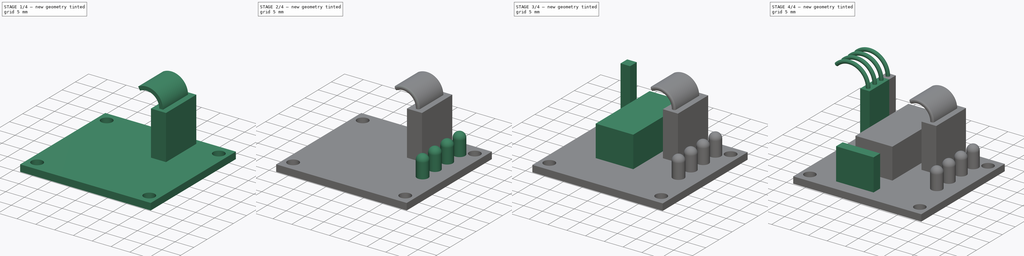
[diagram: build sequence overview — one tinted view per stage of 4, left to right]
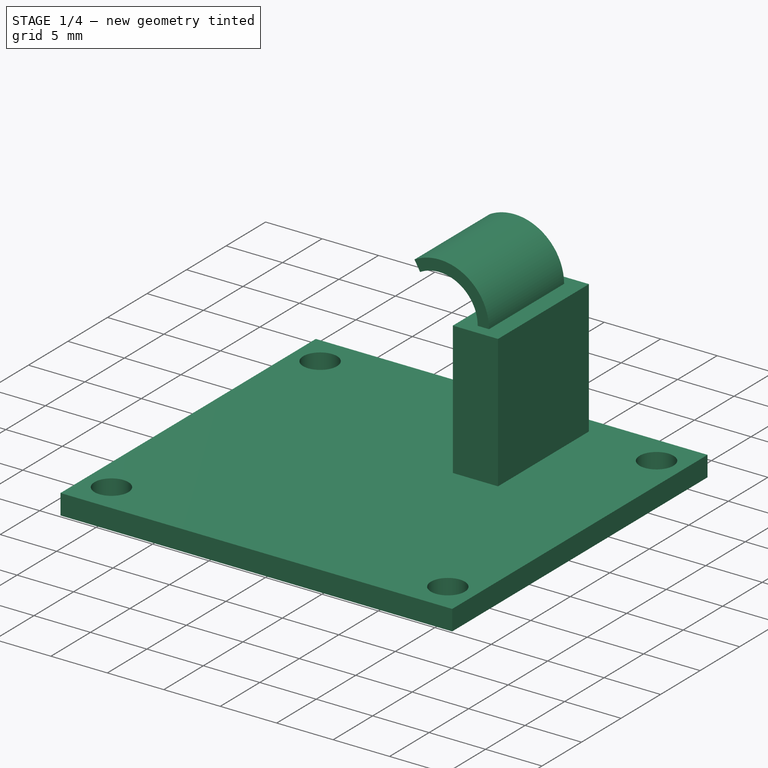
[diagram: stage 1 of 4 — iso view after this stage's code; geometry added in this stage tinted green]
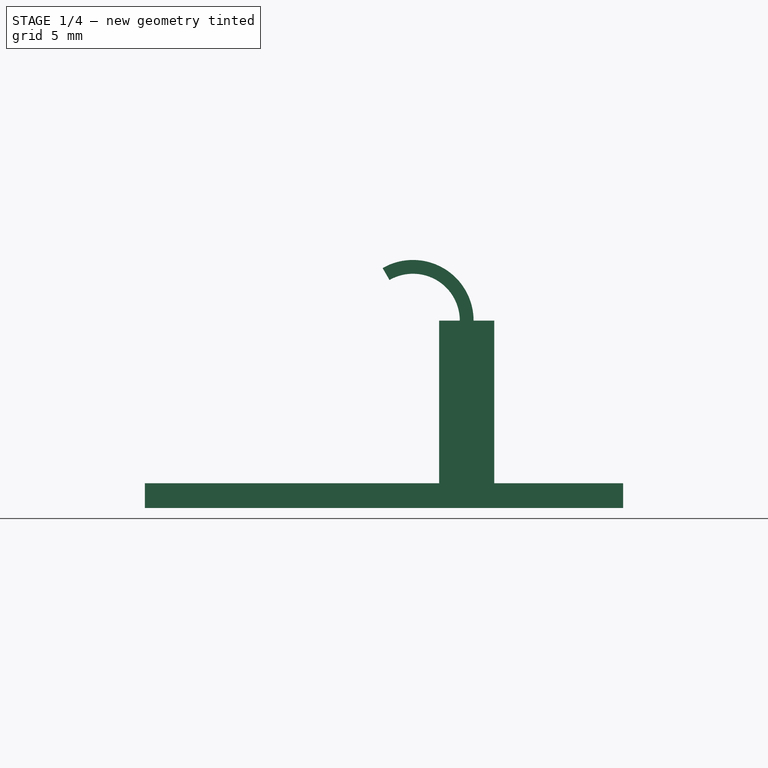
[diagram: stage 1 of 4 — front view after this stage's code; geometry added in this stage tinted green]
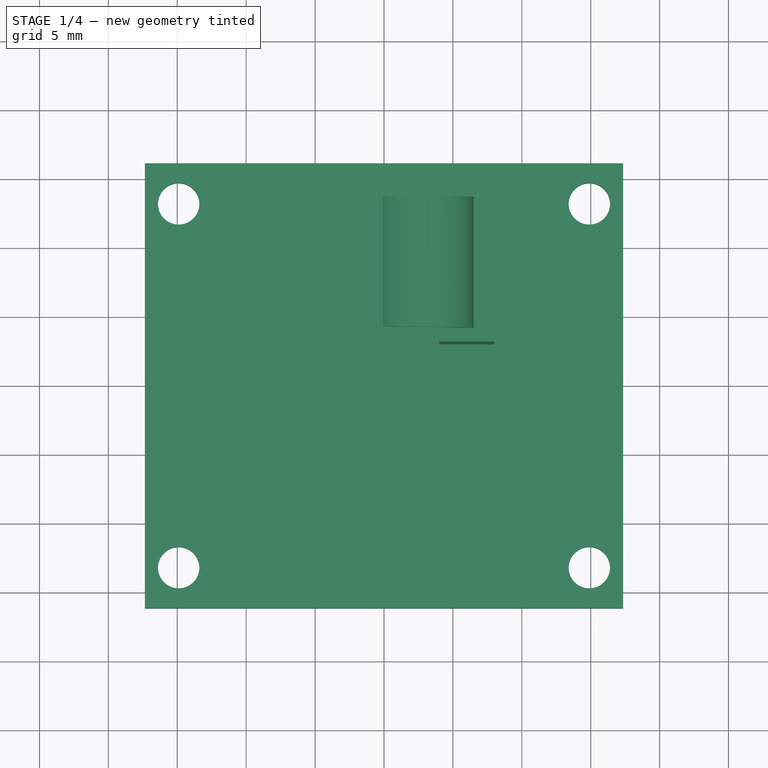
[diagram: stage 1 of 4 — top view after this stage's code; geometry added in this stage tinted green]
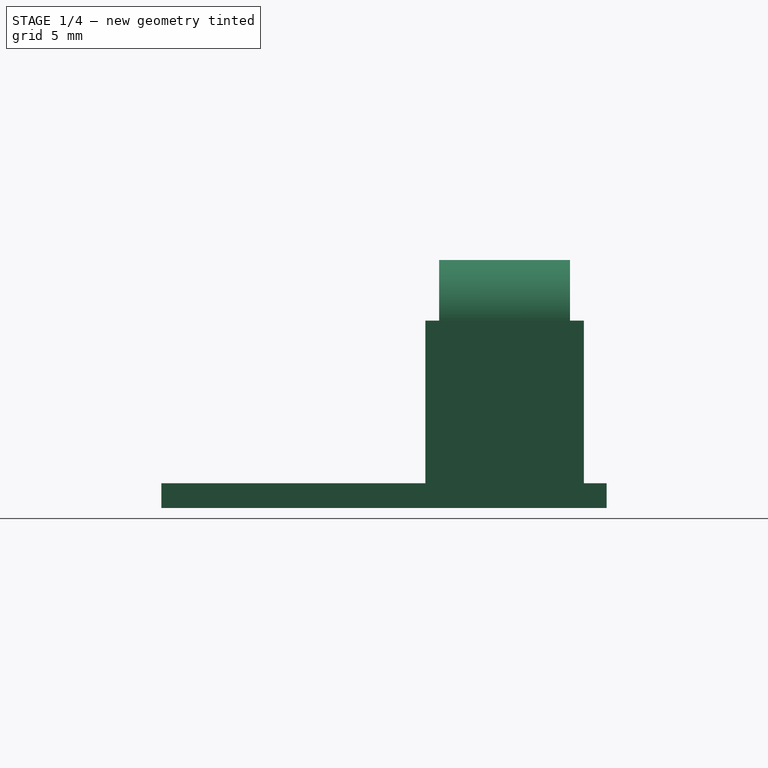
[diagram: stage 1 of 4 — right view after this stage's code; geometry added in this stage tinted green]
FCSTD DOCUMENT  (FreeCAD 0.18R15536 (Git))
Label: ULN2003 stepper driver board
License: All rights reserved
LicenseURL: http://en.wikipedia.org/wiki/All_rights_reserved
objects: Sketcher::SketchObject×9, PartDesign::Pad×6, PartDesign::LinearPattern×2, PartDesign::Fillet×1, PartDesign::Revolution×1, PartDesign::AdditivePipe×1, PartDesign::Body×1
note: 29 computed .brp shape members not serialized (recipe doc carries the construction recipe); baked Part::Feature solids carry a one-line shape summary decoded from their .brp

FEATURE [Sketcher::SketchObject] Sketch
  MapMode = 5
  Support = -> [XY_Plane]
  sketch-geometry (12):
    g0: LineSegment StartX=-17.35 StartY=16.15 StartZ=0 EndX=17.35 EndY=16.15 EndZ=0
    g1: LineSegment StartX=17.35 StartY=16.15 StartZ=0 EndX=17.35 EndY=-16.15 EndZ=0
    g2: LineSegment StartX=17.35 StartY=-16.15 StartZ=0 EndX=-17.35 EndY=-16.15 EndZ=0
    g3: LineSegment StartX=-17.35 StartY=-16.15 StartZ=0 EndX=-17.35 EndY=16.15 EndZ=0
    g4: LineSegment [constr] StartX=-14.9 StartY=13.2 StartZ=0 EndX=14.9 EndY=13.2 EndZ=0
    g5: LineSegment [constr] StartX=14.9 StartY=13.2 StartZ=0 EndX=14.9 EndY=-13.2 EndZ=0
    g6: LineSegment [constr] StartX=14.9 StartY=-13.2 StartZ=0 EndX=-14.9 EndY=-13.2 EndZ=0
    g7: LineSegment [constr] StartX=-14.9 StartY=-13.2 StartZ=0 EndX=-14.9 EndY=13.2 EndZ=0
    g8: Circle CenterX=14.9 CenterY=13.2 CenterZ=0 NormalX=0 NormalY=0 NormalZ=1 AngleXU=0 Radius=1.5
    g9: Circle CenterX=-14.9 CenterY=13.2 CenterZ=0 NormalX=0 NormalY=0 NormalZ=1 AngleXU=0 Radius=1.5
    g10: Circle CenterX=-14.9 CenterY=-13.2 CenterZ=0 NormalX=0 NormalY=0 NormalZ=1 AngleXU=0 Radius=1.5
    g11: Circle CenterX=14.9 CenterY=-13.2 CenterZ=0 NormalX=0 NormalY=0 NormalZ=1 AngleXU=0 Radius=1.5
  constraints (28):
    c: Coincident(g0,g1)
    c: Coincident(g1,g2)
    c: Coincident(g2,g3)
    c: Coincident(g3,g0)
    c: Horizontal(g2)
    c: Vertical(g3)
    c: DistanceX(g0,g0) = 34.7
    c: Symmetric(g0,g0,g-2)
    c: Symmetric(g1,g0,g-1)
    c: DistanceY(g1,g1) = 32.3
    c: Coincident(g4,g5)
    c: Coincident(g5,g6)
    c: Coincident(g6,g7)
    c: Coincident(g7,g4)
    c: Horizontal(g6)
    c: Vertical(g7)
    c: Symmetric(g4,g4,g-2)
    c: Symmetric(g5,g4,g-1)
    c: DistanceX(g4,g4) = 29.8
    c: DistanceY(g5,g5) = 26.4
    c: Coincident(g8,g4)
    c: Radius(g8) = 1.5
    c: Coincident(g9,g4)
    c: Coincident(g10,g6)
    c: Coincident(g11,g5)
    c: Equal(g11,g10)
    c: Equal(g10,g9)
    c: Equal(g9,g8)
FEATURE [PartDesign::Pad] Pad
  Length = 1.8
  Length2 = 100
  Profile = -> Sketch
  Type = 0
FEATURE [Sketcher::SketchObject] Sketch001
  MapMode = 5
  Placement = pos=(0,0,1.8) rot=(0,0,1;0rad)
  Support = -> [Pad]
  sketch-geometry (4):
    g0: LineSegment StartX=4 StartY=14.5 StartZ=0 EndX=8 EndY=14.5 EndZ=0
    g1: LineSegment StartX=8 StartY=14.5 StartZ=0 EndX=8 EndY=3 EndZ=0
    g2: LineSegment StartX=8 StartY=3 StartZ=0 EndX=4 EndY=3 EndZ=0
    g3: LineSegment StartX=4 StartY=3 StartZ=0 EndX=4 EndY=14.5 EndZ=0
  constraints (12):
    c: Coincident(g0,g1)
    c: Coincident(g1,g2)
    c: Coincident(g2,g3)
    c: Coincident(g3,g0)
    c: Horizontal(g0)
    c: Horizontal(g2)
    c: Vertical(g1)
    c: Vertical(g3)
    c: DistanceX(g2) = 4
    c: DistanceY(g2) = 3
    c: DistanceY(g1,g1) = 11.5
    c: DistanceX(g0,g0) = 4
FEATURE [PartDesign::Pad] Pad001
  BaseFeature = -> Pad
  Length = 11.8
  Length2 = 100
  Profile = -> Sketch001
  Type = 0
FEATURE [Sketcher::SketchObject] Sketch002
  AttachmentOffset = pos=(0,0,-1) rot=(0,0,1;0rad)
  ExternalGeometry = -> [Pad001]
  MapMode = 5
  Placement = pos=(0,4,-2e-16) rot=(1,0,0;1.5708rad)
  Support = -> [Pad001]
  sketch-geometry (6):
    g0: ArcOfCircle CenterX=2.1 CenterY=13.6 CenterZ=0 NormalX=0 NormalY=0 NormalZ=1 AngleXU=0 Radius=3.4 StartAngle=1e-16 EndAngle=2.0944
    g1: ArcOfCircle CenterX=2.1 CenterY=13.6 CenterZ=0 NormalX=0 NormalY=0 NormalZ=1 AngleXU=0 Radius=4.4 StartAngle=0 EndAngle=2.0944
    g2: LineSegment StartX=-0.1 StartY=17.4105 StartZ=0 EndX=0.4 EndY=16.5445 EndZ=0
    g3: LineSegment [constr] StartX=2.1 StartY=18 StartZ=0 EndX=2.1 EndY=13.6 EndZ=0
    g4: LineSegment [constr] StartX=6 StartY=18 StartZ=0 EndX=6 EndY=13.6 EndZ=0
    g5: LineSegment StartX=5.5 StartY=13.6 StartZ=0 EndX=6.5 EndY=13.6 EndZ=0
  constraints (18):
    c: PointOnObject(g0,g-3)
    c: Coincident(g1,g0)
    c: Coincident(g2,g1)
    c: Coincident(g2,g0)
    c: PointOnObject(g0,g2)
    c: PointOnObject(g0,g-3)
    c: PointOnObject(g3,g1)
    c: Coincident(g3,g0)
    c: DistanceY(g3) = 18
    c: Distance(g2) = 1
    c: PointOnObject(g4,g-3)
    c: Symmetric(g-3,g-3,g4)
    c: Symmetric(g1,g0,g4)
    c: Vertical(g3)
    c: Equal(g4,g3)
    c: Angle(g3,g2) = 0.523599
    c: Coincident(g5,g0)
    c: Coincident(g5,g1)
FEATURE [PartDesign::Pad] Pad002
  BaseFeature = -> Pad001
  Length = 9.5
  Length2 = 100
  Profile = -> Sketch002
  Reversed = true
  Type = 0
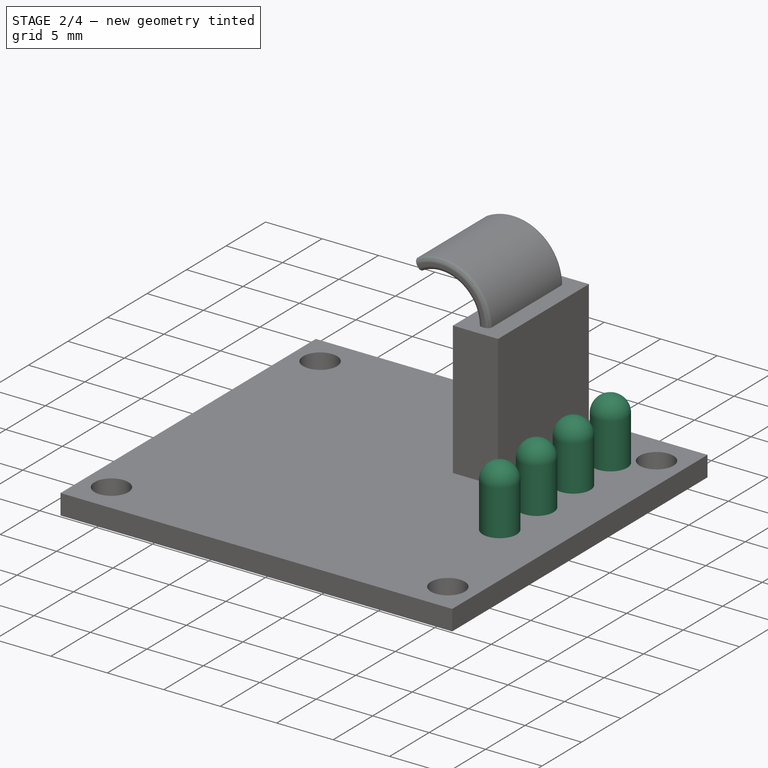
[diagram: stage 2 of 4 — iso view after this stage's code; geometry added in this stage tinted green]
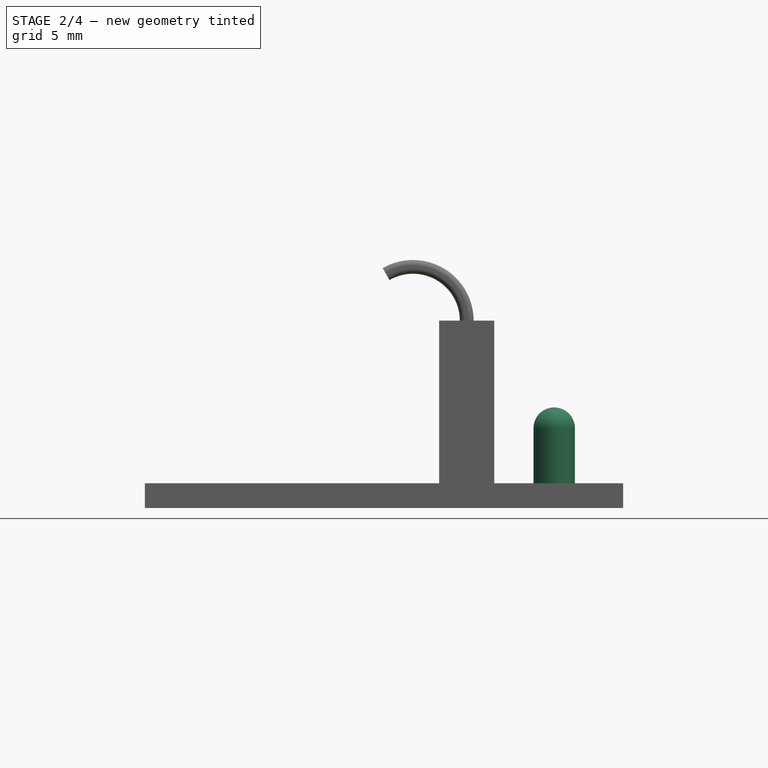
[diagram: stage 2 of 4 — front view after this stage's code; geometry added in this stage tinted green]
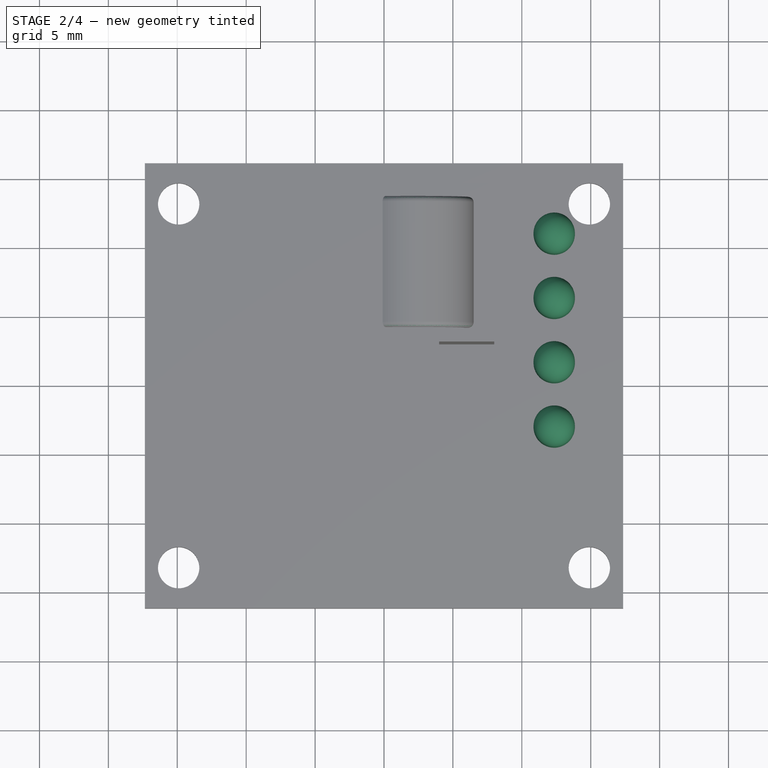
[diagram: stage 2 of 4 — top view after this stage's code; geometry added in this stage tinted green]
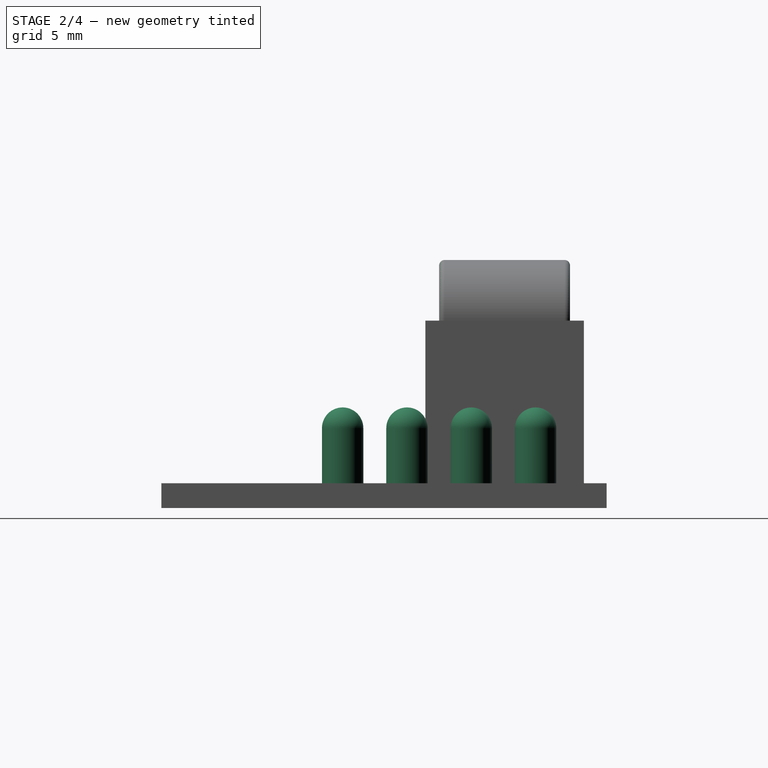
[diagram: stage 2 of 4 — right view after this stage's code; geometry added in this stage tinted green]
FEATURE [PartDesign::Fillet] Fillet
  Base = -> Pad002 [Edge41,Edge46,Edge42,Edge45]
  BaseFeature = -> Pad002
  Radius = 0.4
FEATURE [Sketcher::SketchObject] Sketch003
  AttachmentOffset = pos=(0,0,3) rot=(0,0,1;0rad)
  ExternalGeometry = -> [Fillet]
  MapMode = 5
  Placement = pos=(0,-3,-7e-16) rot=(1,0,0;1.5708rad)
  Support = -> [XZ_Plane]
  sketch-geometry (5):
    g0: ArcOfCircle CenterX=12.35 CenterY=5.8 CenterZ=0 NormalX=0 NormalY=0 NormalZ=1 AngleXU=0 Radius=1.5 StartAngle=3e-16 EndAngle=1.5708
    g1: LineSegment StartX=13.85 StartY=5.8 StartZ=0 EndX=13.85 EndY=1.8 EndZ=0
    g2: LineSegment StartX=13.85 StartY=1.8 StartZ=0 EndX=12.35 EndY=1.8 EndZ=0
    g3: LineSegment StartX=12.35 StartY=1.8 StartZ=0 EndX=12.35 EndY=7.3 EndZ=0
    g4: LineSegment [constr] StartX=12.35 StartY=7.3 StartZ=0 EndX=12.35 EndY=8.8 EndZ=0
  constraints (15):
    c: Vertical(g1)
    c: Coincident(g1,g2)
    c: Horizontal(g2)
    c: Coincident(g2,g3)
    c: Vertical(g3)
    c: Coincident(g0,g3)
    c: PointOnObject(g0,g3)
    c: Tangent(g0,g1) = 1.5708
    c: DistanceY(g1,g0) = 5.5
    c: Radius(g0) = 1.5
    c: PointOnObject(g1,g-3)
    c: Coincident(g4,g0)
    c: Vertical(g4)
    c: Equal(g2,g4)
    c: DistanceX(g4,g-3) = 5
FEATURE [PartDesign::Revolution] Revolution
  Angle = 360
  Axis = (0,-3e-16,1.5)
  Base = (12.35,-3,7.3)
  BaseFeature = -> Fillet
  Profile = -> Sketch003
  ReferenceAxis = -> Sketch003 [Axis0]
  Reversed = true
FEATURE [PartDesign::LinearPattern] LinearPattern
  BaseFeature = -> Revolution
  Direction = -> Y_Axis
  Length = 14
  Occurrences = 4
  Originals = -> [Revolution]
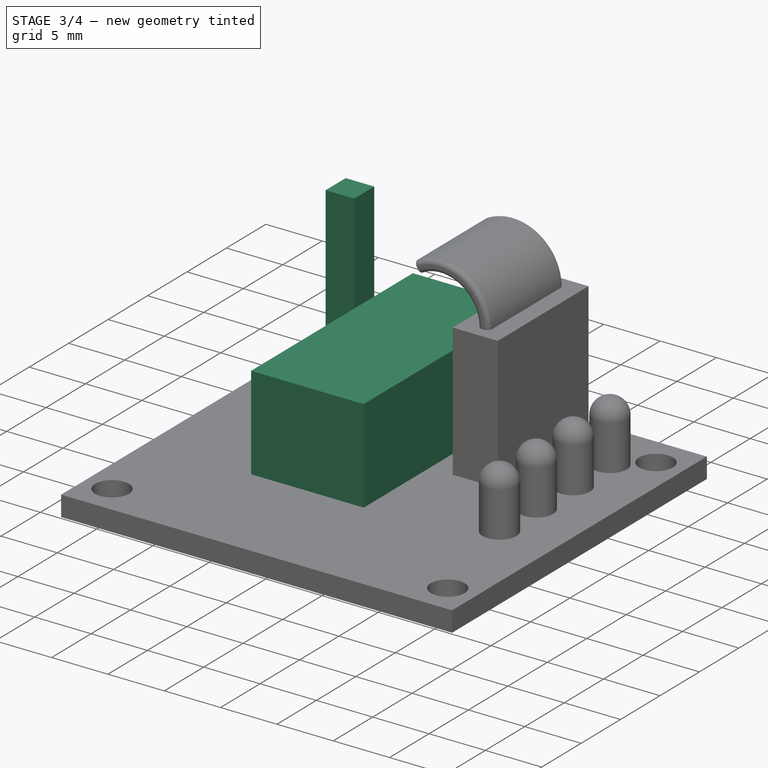
[diagram: stage 3 of 4 — iso view after this stage's code; geometry added in this stage tinted green]
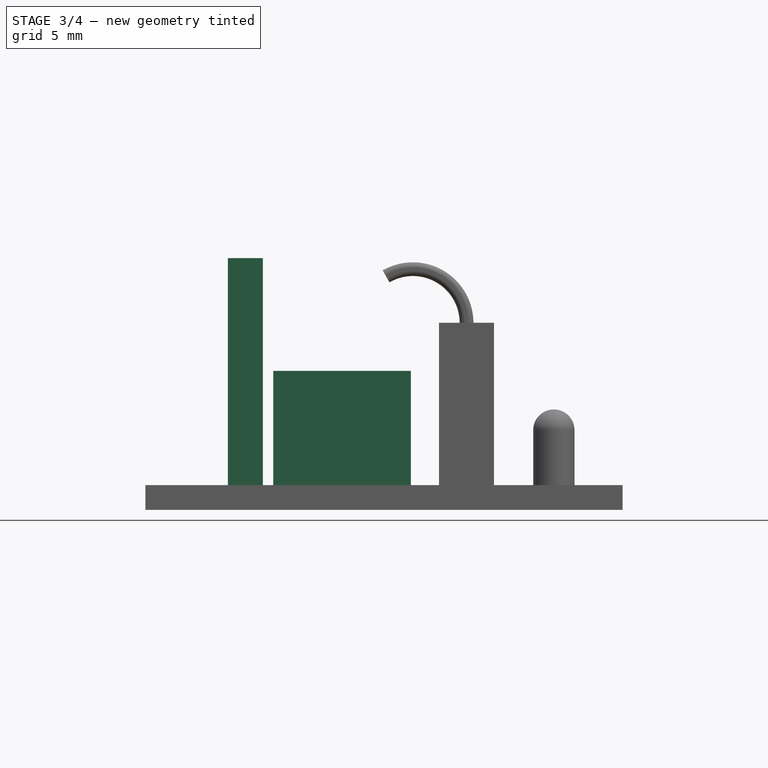
[diagram: stage 3 of 4 — front view after this stage's code; geometry added in this stage tinted green]
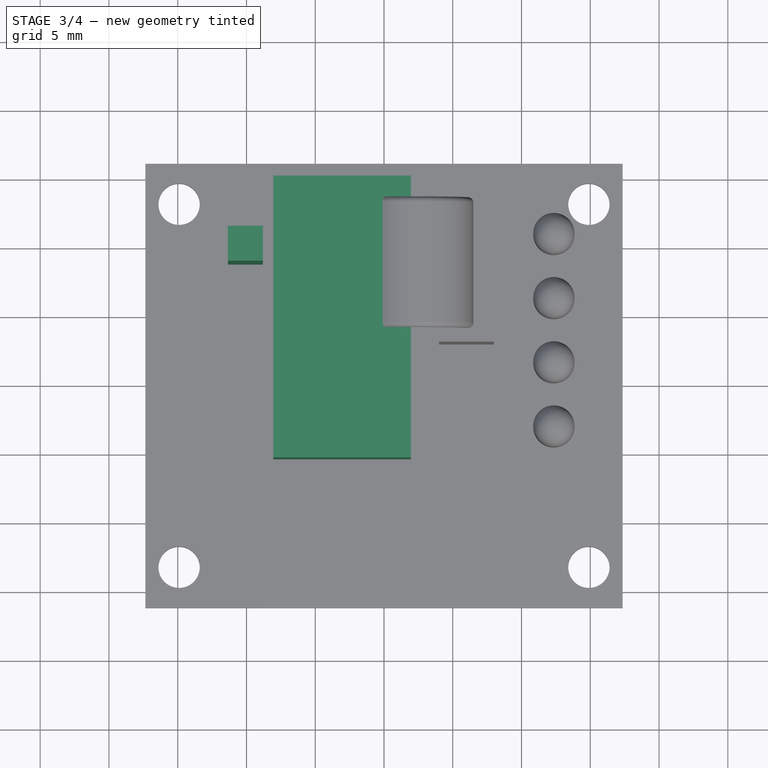
[diagram: stage 3 of 4 — top view after this stage's code; geometry added in this stage tinted green]
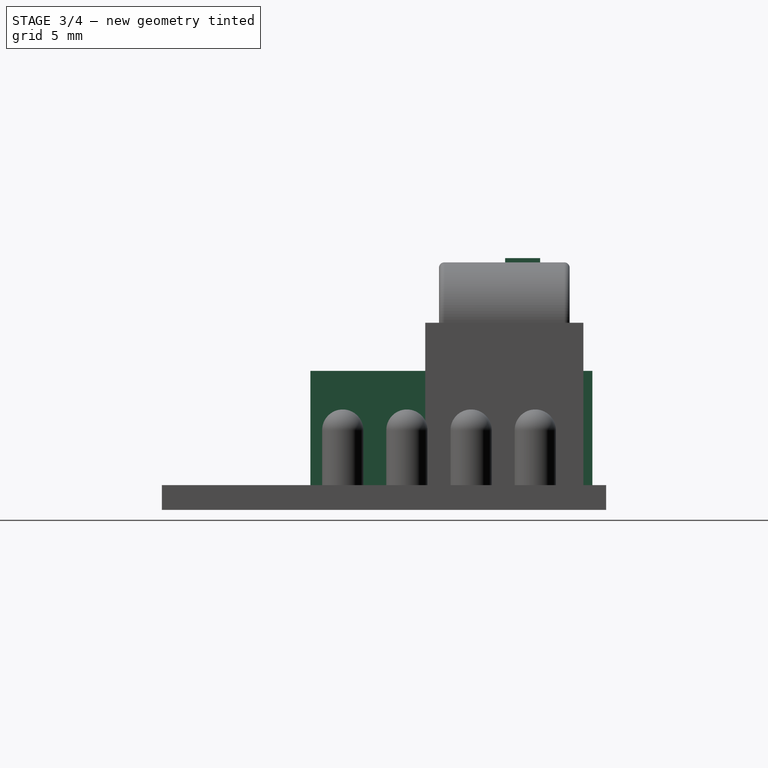
[diagram: stage 3 of 4 — right view after this stage's code; geometry added in this stage tinted green]
FEATURE [Sketcher::SketchObject] Sketch004
  ExternalGeometry = -> [LinearPattern]
  MapMode = 5
  Placement = pos=(0,0,1.8) rot=(0,0,1;0rad)
  Support = -> [LinearPattern]
  sketch-geometry (4):
    g0: LineSegment StartX=1.95 StartY=15.15 StartZ=0 EndX=-8.05 EndY=15.15 EndZ=0
    g1: LineSegment StartX=-8.05 StartY=15.15 StartZ=0 EndX=-8.05 EndY=-5.35 EndZ=0
    g2: LineSegment StartX=-8.05 StartY=-5.35 StartZ=0 EndX=1.95 EndY=-5.35 EndZ=0
    g3: LineSegment StartX=1.95 StartY=-5.35 StartZ=0 EndX=1.95 EndY=15.15 EndZ=0
  constraints (12):
    c: Coincident(g0,g1)
    c: Coincident(g1,g2)
    c: Coincident(g2,g3)
    c: Coincident(g3,g0)
    c: Horizontal(g0)
    c: Horizontal(g2)
    c: Vertical(g1)
    c: Vertical(g3)
    c: DistanceY(g1,g1) = 20.5
    c: DistanceY(g0,g-3) = 1
    c: DistanceX(g0,g0) = 10
    c: DistanceX(g-3,g0) = 9.3
FEATURE [PartDesign::Pad] Pad003
  BaseFeature = -> LinearPattern
  Length = 8.3
  Length2 = 100
  Profile = -> Sketch004
  Type = 0
FEATURE [Sketcher::SketchObject] Sketch005
  ExternalGeometry = -> [Pad003]
  MapMode = 5
  Placement = pos=(0,0,1.8) rot=(0,0,1;0rad)
  Support = -> [Pad003]
  sketch-geometry (4):
    g0: LineSegment StartX=-11.35 StartY=11.35 StartZ=0 EndX=-8.81 EndY=11.35 EndZ=0
    g1: LineSegment StartX=-8.81 StartY=11.35 StartZ=0 EndX=-8.81 EndY=8.81 EndZ=0
    g2: LineSegment StartX=-8.81 StartY=8.81 StartZ=0 EndX=-11.35 EndY=8.81 EndZ=0
    g3: LineSegment StartX=-11.35 StartY=8.81 StartZ=0 EndX=-11.35 EndY=11.35 EndZ=0
  constraints (12):
    c: Coincident(g0,g1)
    c: Coincident(g1,g2)
    c: Coincident(g2,g3)
    c: Coincident(g3,g0)
    c: Horizontal(g0)
    c: Horizontal(g2)
    c: Vertical(g1)
    c: Vertical(g3)
    c: Equal(g3,g0)
    c: DistanceX(g0,g0) = 2.54
    c: DistanceX(g-3,g0) = 6
    c: DistanceY(g0,g-3) = 4.8
FEATURE [PartDesign::Pad] Pad004
  BaseFeature = -> Pad003
  Length = 16.5
  Length2 = 100
  Profile = -> Sketch005
  Type = 0
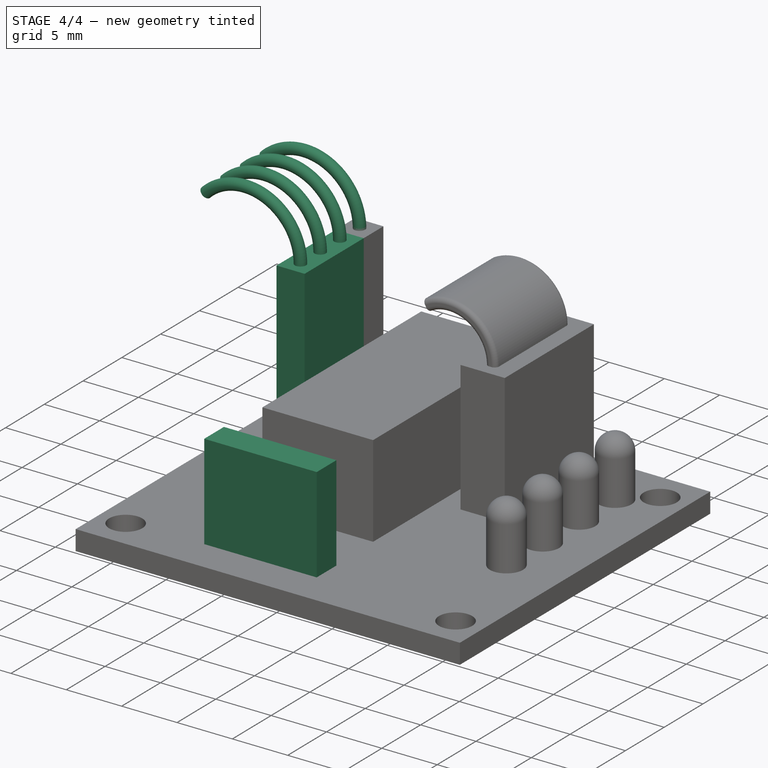
[diagram: stage 4 of 4 — iso view after this stage's code; geometry added in this stage tinted green]
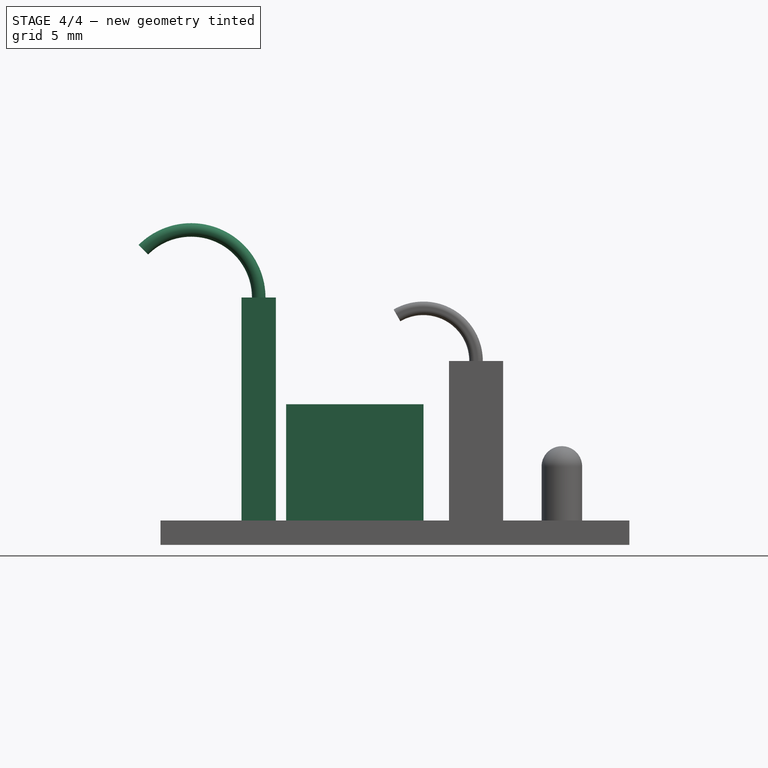
[diagram: stage 4 of 4 — front view after this stage's code; geometry added in this stage tinted green]
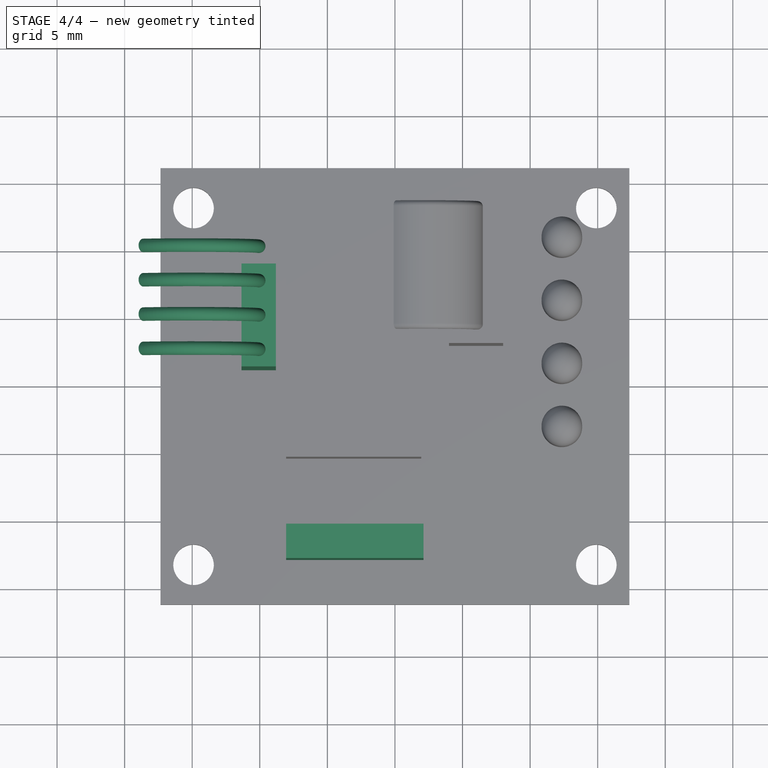
[diagram: stage 4 of 4 — top view after this stage's code; geometry added in this stage tinted green]
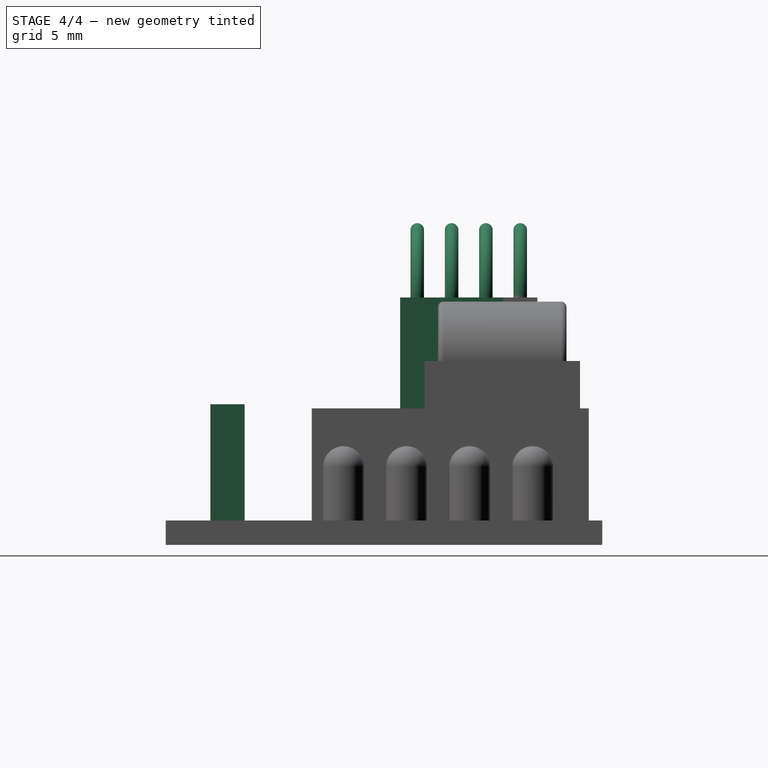
[diagram: stage 4 of 4 — right view after this stage's code; geometry added in this stage tinted green]
FEATURE [Sketcher::SketchObject] Sketch006
  ExternalGeometry = -> [Pad004]
  MapMode = 5
  Placement = pos=(0,0,18.3) rot=(0,0,1;0rad)
  Support = -> [Pad004]
  sketch-geometry (2):
    g0: Circle [constr] CenterX=-10.08 CenterY=10.08 CenterZ=0 NormalX=0 NormalY=0 NormalZ=1 AngleXU=0 Radius=1.27
    g1: Circle CenterX=-10.08 CenterY=10.08 CenterZ=0 NormalX=0 NormalY=0 NormalZ=1 AngleXU=0 Radius=0.5
  constraints (5):
    c: Coincident(g1,g0)
    c: Tangent(g-5,g0)
    c: Tangent(g0,g-4)
    c: Tangent(g0,g-3)
    c: Radius(g1) = 0.5
FEATURE [Sketcher::SketchObject] Sketch007
  ExternalGeometry = -> [Pad004]
  MapMode = 5
  Placement = pos=(0,0,0) rot=(1,0,0;1.5708rad)
  Support = -> [XZ_Plane]
  sketch-geometry (3):
    g0: ArcOfCircle CenterX=-15.08 CenterY=18.3 CenterZ=0 NormalX=0 NormalY=0 NormalZ=1 AngleXU=0 Radius=5 StartAngle=2e-16 EndAngle=2.35619
    g1: LineSegment [constr] StartX=-18.6155 StartY=21.8355 StartZ=0 EndX=-15.08 EndY=18.3 EndZ=0
    g2: LineSegment [constr] StartX=-10.08 StartY=18.3 StartZ=0 EndX=-10.08 EndY=15.76 EndZ=0
  constraints (9):
    c: PointOnObject(g0,g-3)
    c: PointOnObject(g0,g-3)
    c: Coincident(g1,g0)
    c: Coincident(g1,g0)
    c: Coincident(g2,g0)
    c: Equal(g-3,g2)
    c: Symmetric(g-3,g-3,g2)
    c: Angle(g-3,g1) = 2.35619
    c: Radius(g0) = 5
FEATURE [PartDesign::AdditivePipe] AdditivePipe
  AuxilleryCurvelinear = true
  AuxillerySpineTangent = false
  BaseFeature = -> Pad004
  Binormal = (0,0,0)
  Mode = 0
  Profile = -> Sketch006
  Spine = -> Sketch007 [Edge1]
  SpineTangent = false
  Transformation = 0
  Transition = 0
FEATURE [PartDesign::LinearPattern] LinearPattern001
  BaseFeature = -> AdditivePipe
  Direction = -> Y_Axis
  Length = 7.62
  Occurrences = 4
  Originals = -> [Pad004,AdditivePipe]
  Reversed = true
FEATURE [Sketcher::SketchObject] Sketch008
  ExternalGeometry = -> [LinearPattern001]
  MapMode = 5
  Placement = pos=(0,0,1.8) rot=(0,0,1;0rad)
  Support = -> [LinearPattern001]
  sketch-geometry (4):
    g0: LineSegment StartX=-8.05 StartY=-10.31 StartZ=0 EndX=2.11 EndY=-10.31 EndZ=0
    g1: LineSegment StartX=2.11 StartY=-10.31 StartZ=0 EndX=2.11 EndY=-12.85 EndZ=0
    g2: LineSegment StartX=2.11 StartY=-12.85 StartZ=0 EndX=-8.05 EndY=-12.85 EndZ=0
    g3: LineSegment StartX=-8.05 StartY=-12.85 StartZ=0 EndX=-8.05 EndY=-10.31 EndZ=0
  constraints (12):
    c: Coincident(g0,g1)
    c: Coincident(g1,g2)
    c: Coincident(g2,g3)
    c: Coincident(g3,g0)
    c: Horizontal(g0)
    c: Horizontal(g2)
    c: Vertical(g1)
    c: Vertical(g3)
    c: DistanceY(g3,g3) = 2.54
    c: DistanceX(g0,g0) = 10.16
    c: DistanceY(g-3,g2) = 3.3
    c: DistanceX(g-3,g2) = 9.3
FEATURE [PartDesign::Pad] Pad005
  BaseFeature = -> LinearPattern001
  Length = 8.6
  Length2 = 100
  Profile = -> Sketch008
  Type = 0
FEATURE [PartDesign::Body] Body
  Group = -> [Sketch,Pad,Sketch001,Pad001,Sketch002,Pad002,Fillet,Sketch003,Revolution,LinearPattern,Sketch004,Pad003,Sketch005,Pad004,Sketch006,Sketch007,AdditivePipe,LinearPattern001,Sketch008,Pad005]
  Origin = -> Origin
  Tip = -> Pad005
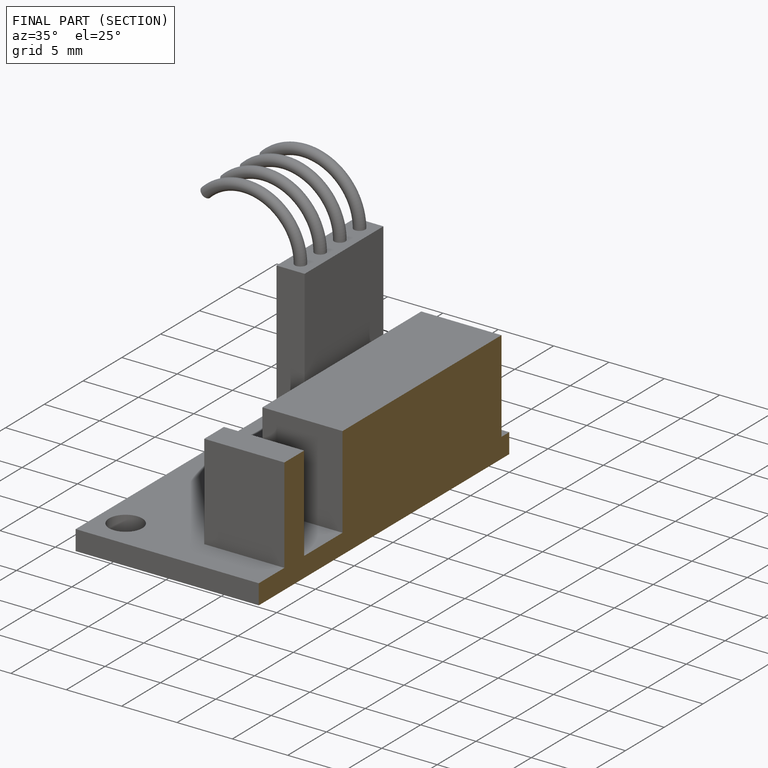
[diagram: finished part — half-section view (interior)]
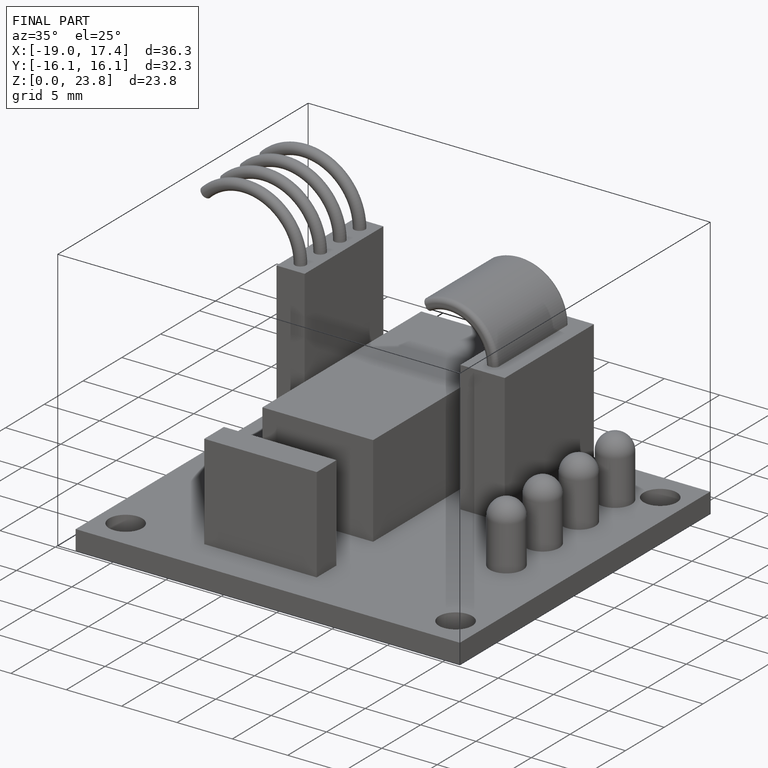
[diagram: finished part — iso view with bounding-box wireframe]
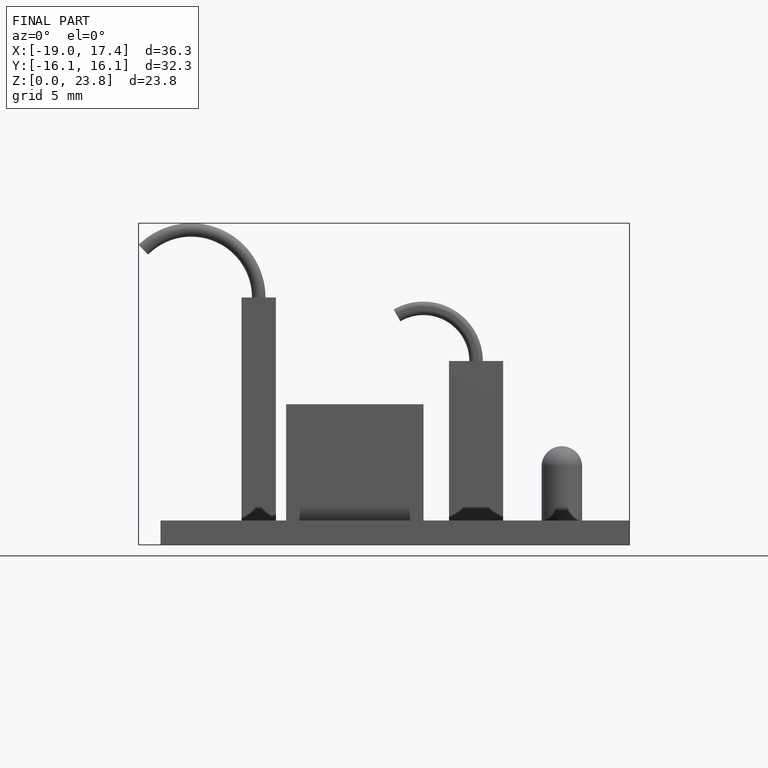
[diagram: finished part — front view with bounding-box wireframe]
